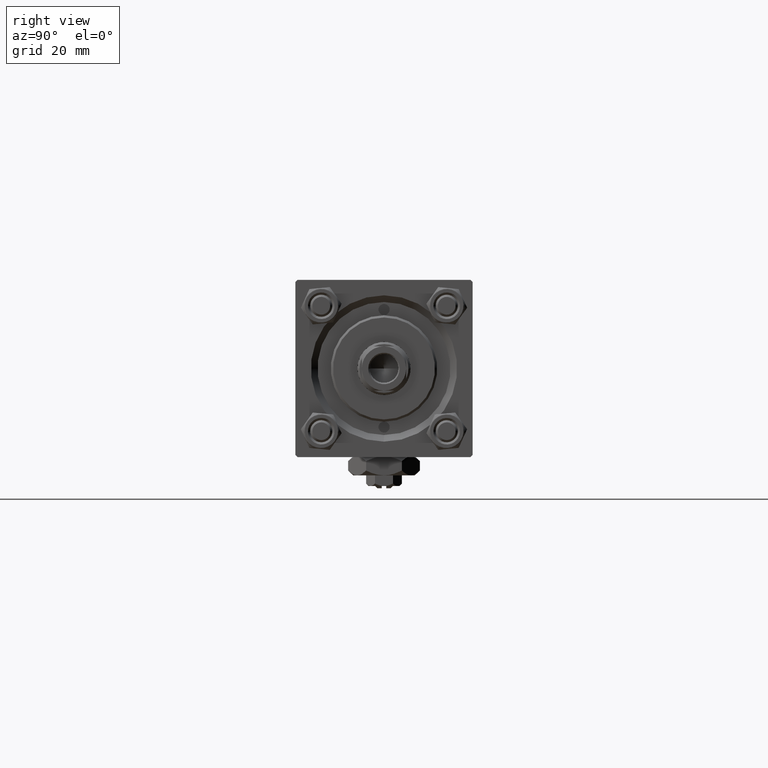
[diagram: clean part render]
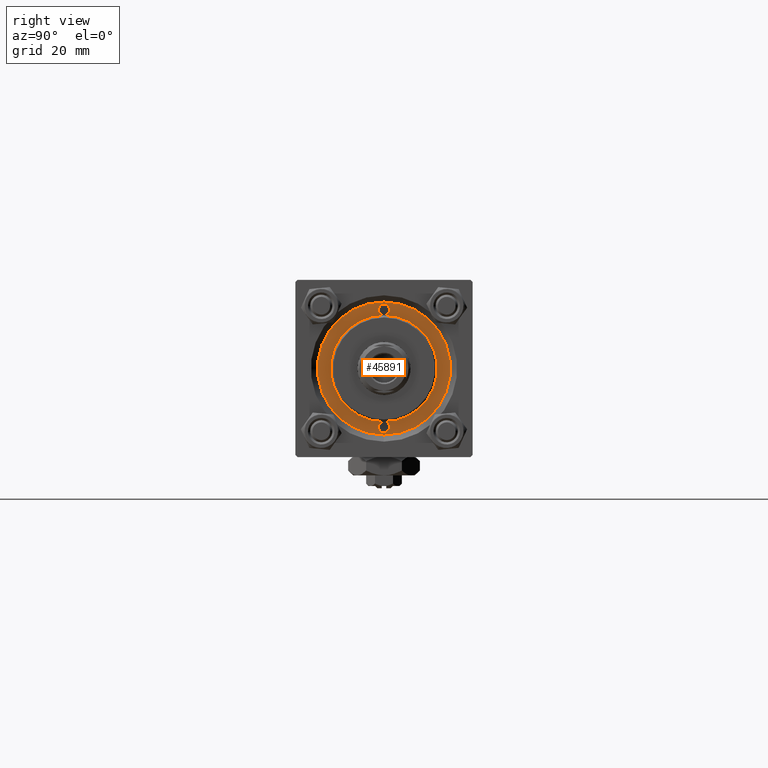
[diagram: same view with one face highlighted and labeled with its STEP entity id]
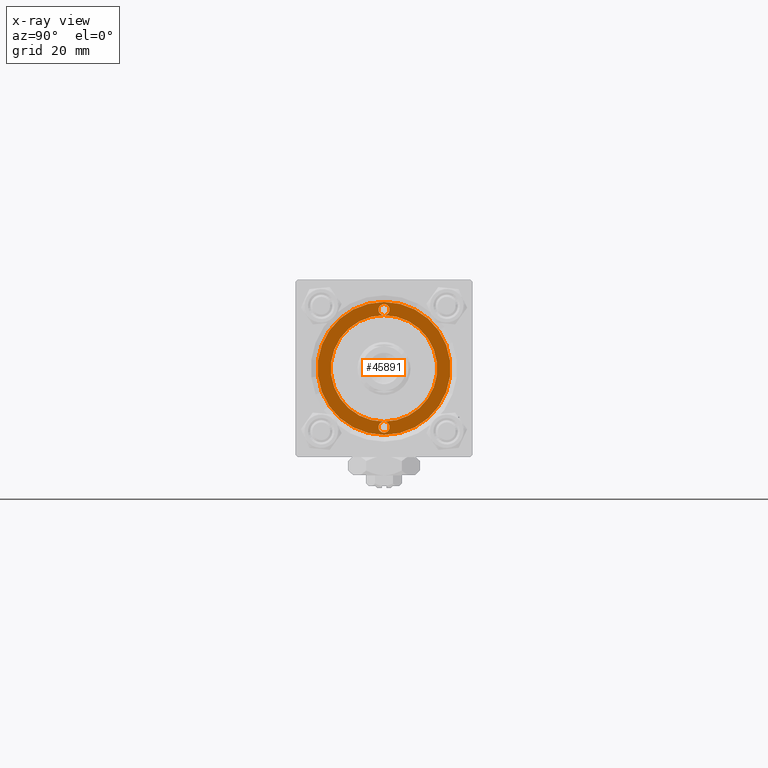
[diagram: x-ray of the same camera — body ghosted, the highlighted face saturated]
A machine part, right view. The second image highlights one B-rep face of the part: STEP entity #45891.
The next image is the same camera in x-ray: the body ghosted, the highlighted face saturated — about 0% of this face is hidden behind the body in this view.
In plain terms, the highlighted planar face has unit normal (1, 0, -0).
Its self-contained STEP definition (entity closure, byte-faithful):
#2133 = ORIENTED_EDGE ( 'NONE', *, *, #22046, .F. ) ;
#3110 = CIRCLE ( 'NONE', #13205, 12.00000000000000178 ) ;
#4476 = DIRECTION ( 'NONE',  ( 1.000000000000000000, 0.000000000000000000, 0.000000000000000000 ) ) ;
#4482 = DIRECTION ( 'NONE',  ( 1.000000000000000000, 0.000000000000000000, -0.000000000000000000 ) ) ;
#4987 = CARTESIAN_POINT ( 'NONE',  ( 0.000000000000000000, 0.000000000000000000, 28.69999999999999929 ) ) ;
#6033 = CARTESIAN_POINT ( 'NONE',  ( -12.00000000000000178, 0.000000000000000000, 28.69999999999999929 ) ) ;
#7278 = ORIENTED_EDGE ( 'NONE', *, *, #31338, .T. ) ;
#7809 = VERTEX_POINT ( 'NONE', #16840 ) ;
#8177 = DIRECTION ( 'NONE',  ( 0.000000000000000000, 0.000000000000000000, 1.000000000000000000 ) ) ;
#8830 = ORIENTED_EDGE ( 'NONE', *, *, #31809, .T. ) ;
#9684 = VERTEX_POINT ( 'NONE', #46642 ) ;
#10269 = VERTEX_POINT ( 'NONE', #38827 ) ;
#11666 = AXIS2_PLACEMENT_3D ( 'NONE', #4987, #37042, #24439 ) ;
#12067 = DIRECTION ( 'NONE',  ( 1.000000000000000000, 0.000000000000000000, 0.000000000000000000 ) ) ;
#12485 = CIRCLE ( 'NONE', #41872, 15.00000000000000000 ) ;
#12626 = CARTESIAN_POINT ( 'NONE',  ( 13.25000000000000000, 0.000000000000000000, 28.69999999999999929 ) ) ;
#13205 = AXIS2_PLACEMENT_3D ( 'NONE', #20774, #43458, #4476 ) ;
#13347 = DIRECTION ( 'NONE',  ( 0.000000000000000000, 0.000000000000000000, 1.000000000000000000 ) ) ;
#14350 = EDGE_LOOP ( 'NONE', ( #23968, #2133, #42512, #15807, #17378, #34164 ) ) ;
#15653 = AXIS2_PLACEMENT_3D ( 'NONE', #20460, #13347, #29370 ) ;
#15807 = ORIENTED_EDGE ( 'NONE', *, *, #27522, .F. ) ;
#16148 = CARTESIAN_POINT ( 'NONE',  ( 15.00000000000000000, 1.836970198721029589E-15, 28.69999999999999929 ) ) ;
#16840 = CARTESIAN_POINT ( 'NONE',  ( 12.00000000000000178, 0.000000000000000000, 28.69999999999999929 ) ) ;
#17378 = ORIENTED_EDGE ( 'NONE', *, *, #50222, .F. ) ;
#18121 = EDGE_CURVE ( 'NONE', #7809, #10269, #22230, .T. ) ;
#18900 = CARTESIAN_POINT ( 'NONE',  ( 0.000000000000000000, 0.000000000000000000, 28.69999999999999929 ) ) ;
#18965 = DIRECTION ( 'NONE',  ( 1.000000000000000000, 0.000000000000000000, 0.000000000000000000 ) ) ;
#19167 = DIRECTION ( 'NONE',  ( 0.000000000000000000, 0.000000000000000000, 1.000000000000000000 ) ) ;
#19232 = CARTESIAN_POINT ( 'NONE',  ( -13.25000000000000178, 0.000000000000000000, 28.69999999999999929 ) ) ;
#19510 = VERTEX_POINT ( 'NONE', #6033 ) ;
#20004 = PLANE ( 'NONE',  #40799 ) ;
#20263 = FACE_BOUND ( 'NONE', #14350, .T. ) ;
#20460 = CARTESIAN_POINT ( 'NONE',  ( -13.25000000000000178, 0.000000000000000000, 28.69999999999999929 ) ) ;
#20774 = CARTESIAN_POINT ( 'NONE',  ( 0.000000000000000000, 0.000000000000000000, 28.69999999999999929 ) ) ;
#22046 = EDGE_CURVE ( 'NONE', #9684, #19510, #30757, .T. ) ;
#22230 = CIRCLE ( 'NONE', #51583, 1.249999999999999334 ) ;
#22393 = AXIS2_PLACEMENT_3D ( 'NONE', #18900, #19167, #27815 ) ;
#23523 = VERTEX_POINT ( 'NONE', #16148 ) ;
#23944 = DIRECTION ( 'NONE',  ( 0.000000000000000000, 0.000000000000000000, 1.000000000000000000 ) ) ;
#23968 = ORIENTED_EDGE ( 'NONE', *, *, #51939, .F. ) ;
#24426 = CARTESIAN_POINT ( 'NONE',  ( 13.25000000000000000, 0.000000000000000000, 28.69999999999999929 ) ) ;
#24439 = DIRECTION ( 'NONE',  ( 1.000000000000000000, 0.000000000000000000, 0.000000000000000000 ) ) ;
#25765 = AXIS2_PLACEMENT_3D ( 'NONE', #19232, #23944, #18965 ) ;
#27522 = EDGE_CURVE ( 'NONE', #7809, #19510, #3110, .T. ) ;
#27815 = DIRECTION ( 'NONE',  ( 1.000000000000000000, 0.000000000000000000, 0.000000000000000000 ) ) ;
#28396 = FACE_OUTER_BOUND ( 'NONE', #34873, .T. ) ;
#29370 = DIRECTION ( 'NONE',  ( 1.000000000000000000, 0.000000000000000000, 0.000000000000000000 ) ) ;
#30757 = CIRCLE ( 'NONE', #15653, 1.249999999999997558 ) ;
#31338 = EDGE_CURVE ( 'NONE', #23523, #48438, #12485, .T. ) ;
#31809 = EDGE_CURVE ( 'NONE', #48438, #23523, #41042, .T. ) ;
#34164 = ORIENTED_EDGE ( 'NONE', *, *, #18121, .F. ) ;
#34832 = DIRECTION ( 'NONE',  ( 1.000000000000000000, 0.000000000000000000, 0.000000000000000000 ) ) ;
#34873 = EDGE_LOOP ( 'NONE', ( #8830, #7278 ) ) ;
#35764 = AXIS2_PLACEMENT_3D ( 'NONE', #24426, #40452, #12067 ) ;
#37042 = DIRECTION ( 'NONE',  ( 0.000000000000000000, 0.000000000000000000, 1.000000000000000000 ) ) ;
#38827 = CARTESIAN_POINT ( 'NONE',  ( 14.49999999999999822, 0.000000000000000000, 28.69999999999999929 ) ) ;
#39670 = CARTESIAN_POINT ( 'NONE',  ( -15.00000000000000000, 0.000000000000000000, 28.69999999999999929 ) ) ;
#40229 = CARTESIAN_POINT ( 'NONE',  ( 0.000000000000000000, 0.000000000000000000, 28.69999999999999929 ) ) ;
#40452 = DIRECTION ( 'NONE',  ( 0.000000000000000000, 0.000000000000000000, 1.000000000000000000 ) ) ;
#40799 = AXIS2_PLACEMENT_3D ( 'NONE', #40229, #8177, #4482 ) ;
#40835 = CIRCLE ( 'NONE', #35764, 1.249999999999999334 ) ;
#41042 = CIRCLE ( 'NONE', #11666, 15.00000000000000000 ) ;
#41872 = AXIS2_PLACEMENT_3D ( 'NONE', #47188, #51124, #34832 ) ;
#42512 = ORIENTED_EDGE ( 'NONE', *, *, #51737, .F. ) ;
#43458 = DIRECTION ( 'NONE',  ( 0.000000000000000000, 0.000000000000000000, 1.000000000000000000 ) ) ;
#43904 = DIRECTION ( 'NONE',  ( 1.000000000000000000, 0.000000000000000000, 0.000000000000000000 ) ) ;
#45038 = CIRCLE ( 'NONE', #22393, 12.00000000000000178 ) ;
#45891 = ADVANCED_FACE ( 'NONE', ( #20263, #28396 ), #20004, .T. ) ;
#46642 = CARTESIAN_POINT ( 'NONE',  ( -14.49999999999999822, 1.530808498934190585E-16, 28.69999999999999929 ) ) ;
#47188 = CARTESIAN_POINT ( 'NONE',  ( 0.000000000000000000, 0.000000000000000000, 28.69999999999999929 ) ) ;
#48416 = CIRCLE ( 'NONE', #25765, 1.249999999999997558 ) ;
#48438 = VERTEX_POINT ( 'NONE', #39670 ) ;
#50222 = EDGE_CURVE ( 'NONE', #10269, #7809, #40835, .T. ) ;
#51124 = DIRECTION ( 'NONE',  ( 0.000000000000000000, 0.000000000000000000, 1.000000000000000000 ) ) ;
#51583 = AXIS2_PLACEMENT_3D ( 'NONE', #12626, #51785, #43904 ) ;
#51737 = EDGE_CURVE ( 'NONE', #19510, #9684, #48416, .T. ) ;
#51785 = DIRECTION ( 'NONE',  ( 0.000000000000000000, 0.000000000000000000, 1.000000000000000000 ) ) ;
#51939 = EDGE_CURVE ( 'NONE', #19510, #7809, #45038, .T. ) ;